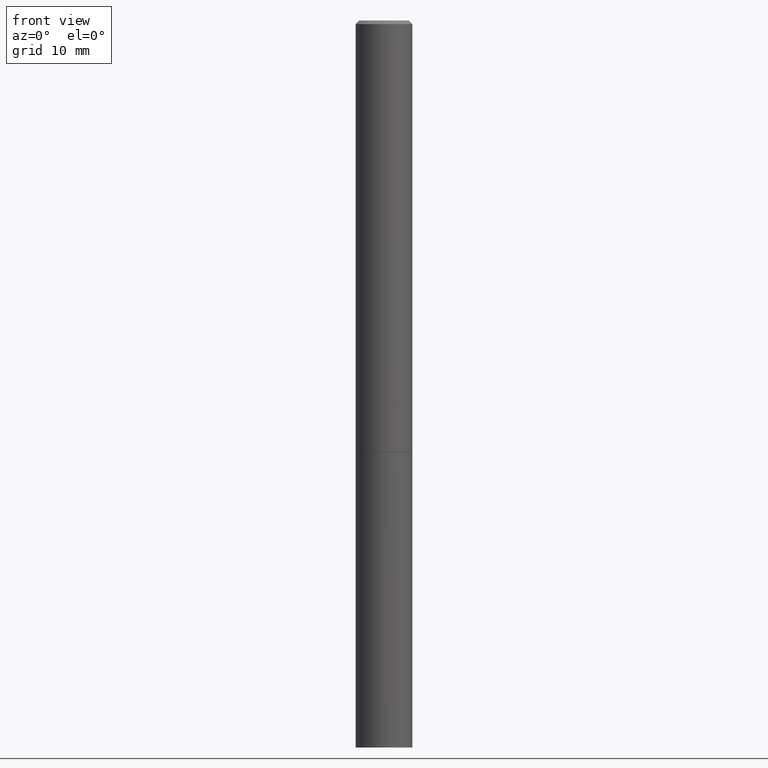
[diagram: clean part render]
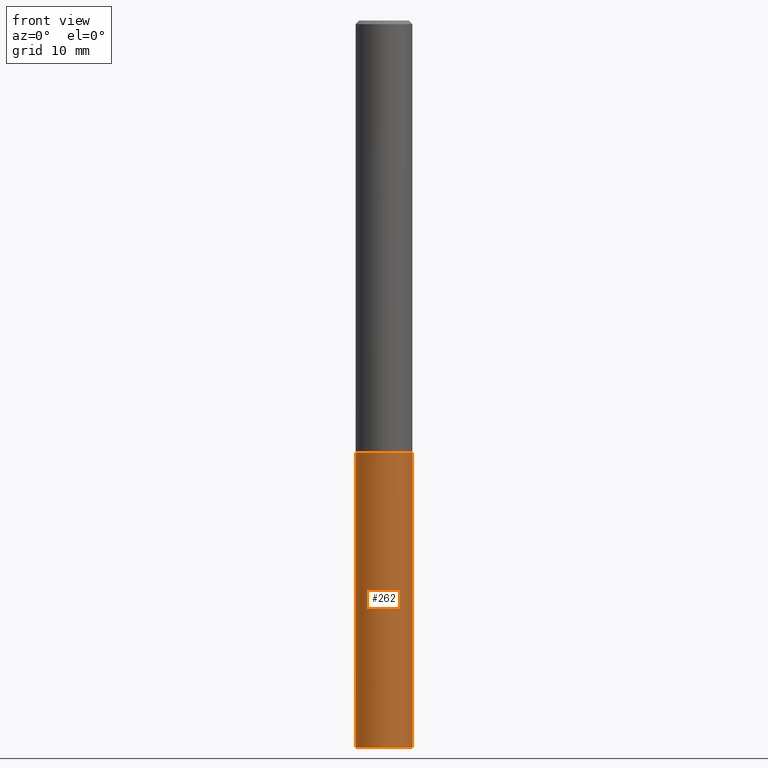
[diagram: same view with one face highlighted and labeled with its STEP entity id]
A machine part, front view. The second image highlights one B-rep face of the part: STEP entity #262.
In plain terms, the highlighted cylindrical surface (edge-blend (fillet) strip) has radius 3.9688 mm, axis along (-0, 0, 1).
Its self-contained STEP definition (entity closure, byte-faithful):
#5 = CARTESIAN_POINT ( 'NONE',  ( 9.781875224740546387E-29, -1.396592535537258233E-14, -4.000000000000000000 ) ) ;
#7 = DIRECTION ( 'NONE',  ( -2.445468806185136597E-29, 3.491481338843145583E-15, 1.000000000000000000 ) ) ;
#14 = FACE_OUTER_BOUND ( 'NONE', #329, .T. ) ;
#17 = DIRECTION ( 'NONE',  ( -2.445468806185136877E-29, 3.491481338843145188E-15, 1.000000000000000000 ) ) ;
#35 = CARTESIAN_POINT ( 'NONE',  ( 0.1562500000000000000, -1.091087918388479174E-15, 7.619026212181150377E-30 ) ) ;
#36 = DIRECTION ( 'NONE',  ( 1.000000000000000000, -6.982962677686266711E-15, 4.876176775795936353E-29 ) ) ;
#58 = CARTESIAN_POINT ( 'NONE',  ( -0.1562500000000000000, -1.001887374293736968E-14, -2.375000000000000000 ) ) ;
#63 = CARTESIAN_POINT ( 'NONE',  ( 0.1562500000000000000, -1.505701327376106229E-14, -4.000000000000000000 ) ) ;
#86 = DIRECTION ( 'NONE',  ( 1.000000000000000000, -6.982962677686262766E-15, 0.000000000000000000 ) ) ;
#87 = DIRECTION ( 'NONE',  ( -2.445468806185136877E-29, 3.491481338843145188E-15, 1.000000000000000000 ) ) ;
#94 = LINE ( 'NONE', #328, #158 ) ;
#121 = ORIENTED_EDGE ( 'NONE', *, *, #292, .F. ) ;
#123 = AXIS2_PLACEMENT_3D ( 'NONE', #148, #7, #86 ) ;
#139 = DIRECTION ( 'NONE',  ( 1.000000000000000000, -6.982962677686262766E-15, 0.000000000000000000 ) ) ;
#145 = EDGE_CURVE ( 'NONE', #307, #299, #215, .T. ) ;
#148 = CARTESIAN_POINT ( 'NONE',  ( 5.807988414689699417E-29, -8.292268179752470118E-15, -2.375000000000000000 ) ) ;
#153 = AXIS2_PLACEMENT_3D ( 'NONE', #5, #227, #139 ) ;
#158 = VECTOR ( 'NONE', #17, 39.37007874015748143 ) ;
#161 = ORIENTED_EDGE ( 'NONE', *, *, #207, .T. ) ;
#181 = CYLINDRICAL_SURFACE ( 'NONE', #320, 0.1562500000000000000 ) ;
#183 = CARTESIAN_POINT ( 'NONE',  ( -0.1562500000000000000, -1.001887374293736968E-14, -4.000000000000000000 ) ) ;
#201 = EDGE_CURVE ( 'NONE', #214, #363, #263, .T. ) ;
#202 = LINE ( 'NONE', #35, #254 ) ;
#207 = EDGE_CURVE ( 'NONE', #299, #363, #202, .T. ) ;
#214 = VERTEX_POINT ( 'NONE', #58 ) ;
#215 = CIRCLE ( 'NONE', #153, 0.1562500000000000000 ) ;
#227 = DIRECTION ( 'NONE',  ( -2.445468806185136597E-29, 3.491481338843145583E-15, 1.000000000000000000 ) ) ;
#254 = VECTOR ( 'NONE', #87, 39.37007874015748143 ) ;
#262 = ADVANCED_FACE ( 'NONE', ( #14 ), #181, .T. ) ;
#263 = CIRCLE ( 'NONE', #123, 0.1562500000000000000 ) ;
#268 = CARTESIAN_POINT ( 'NONE',  ( 0.000000000000000000, 0.000000000000000000, 0.000000000000000000 ) ) ;
#292 = EDGE_CURVE ( 'NONE', #307, #214, #94, .T. ) ;
#299 = VERTEX_POINT ( 'NONE', #63 ) ;
#307 = VERTEX_POINT ( 'NONE', #183 ) ;
#320 = AXIS2_PLACEMENT_3D ( 'NONE', #268, #355, #36 ) ;
#328 = CARTESIAN_POINT ( 'NONE',  ( -0.1562500000000000000, 1.110223024625156540E-15, -7.685836078523291160E-30 ) ) ;
#329 = EDGE_LOOP ( 'NONE', ( #121, #352, #161, #337 ) ) ;
#337 = ORIENTED_EDGE ( 'NONE', *, *, #201, .F. ) ;
#352 = ORIENTED_EDGE ( 'NONE', *, *, #145, .T. ) ;
#355 = DIRECTION ( 'NONE',  ( -2.445468806185136597E-29, 3.491481338843145583E-15, 1.000000000000000000 ) ) ;
#363 = VERTEX_POINT ( 'NONE', #366 ) ;
#366 = CARTESIAN_POINT ( 'NONE',  ( 0.1562500000000000000, -9.383356098140948502E-15, -2.375000000000000000 ) ) ;